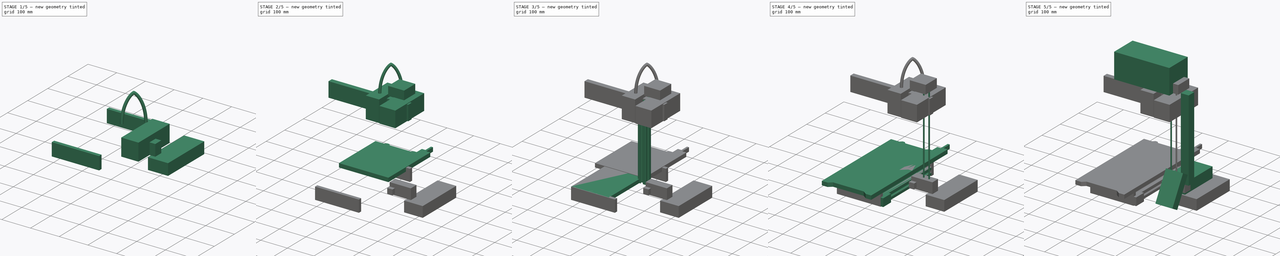
[diagram: build sequence overview — one tinted view per stage of 5, left to right]
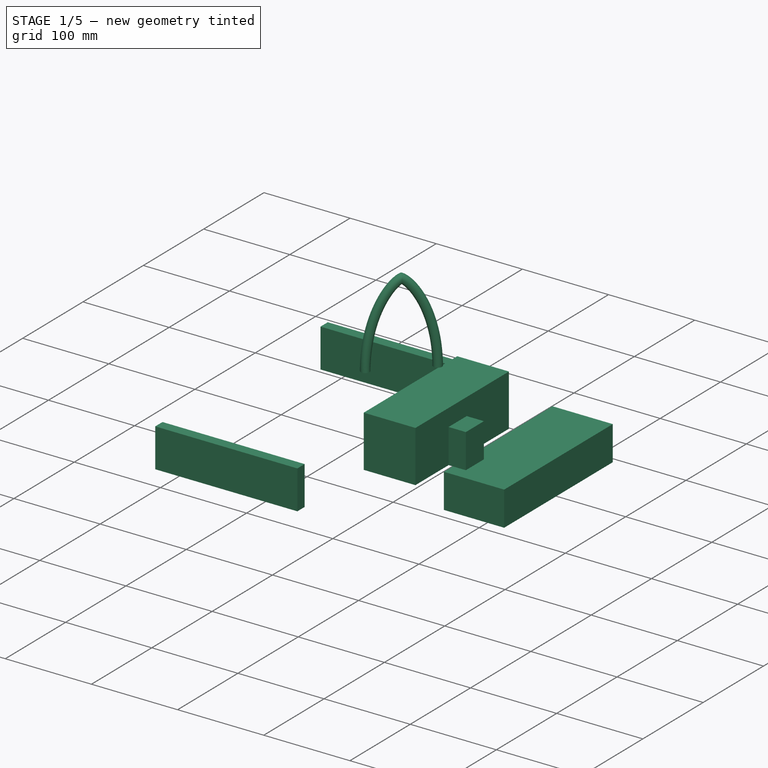
[diagram: stage 1 of 5 — iso view after this stage's code; geometry added in this stage tinted green]
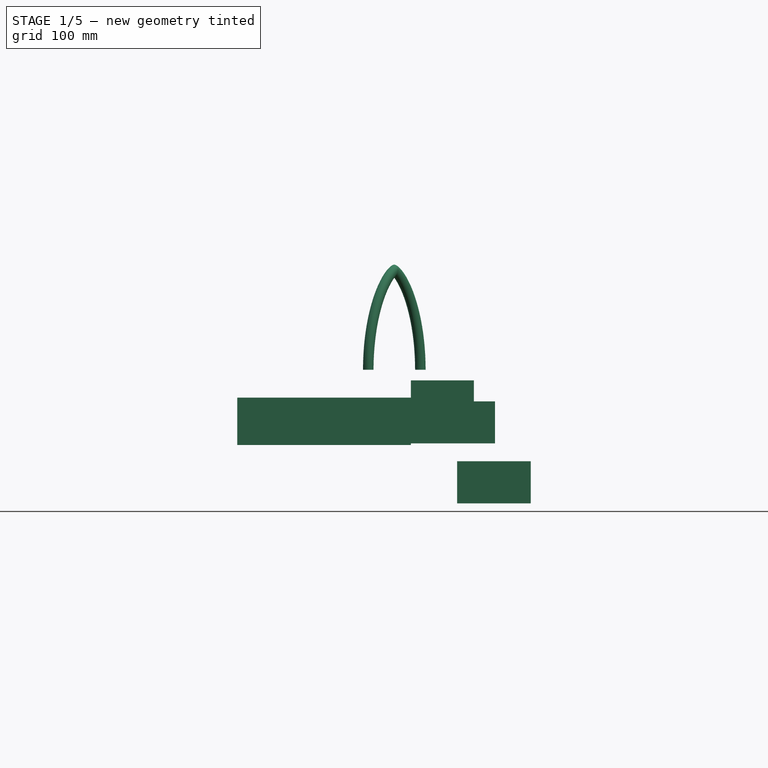
[diagram: stage 1 of 5 — front view after this stage's code; geometry added in this stage tinted green]
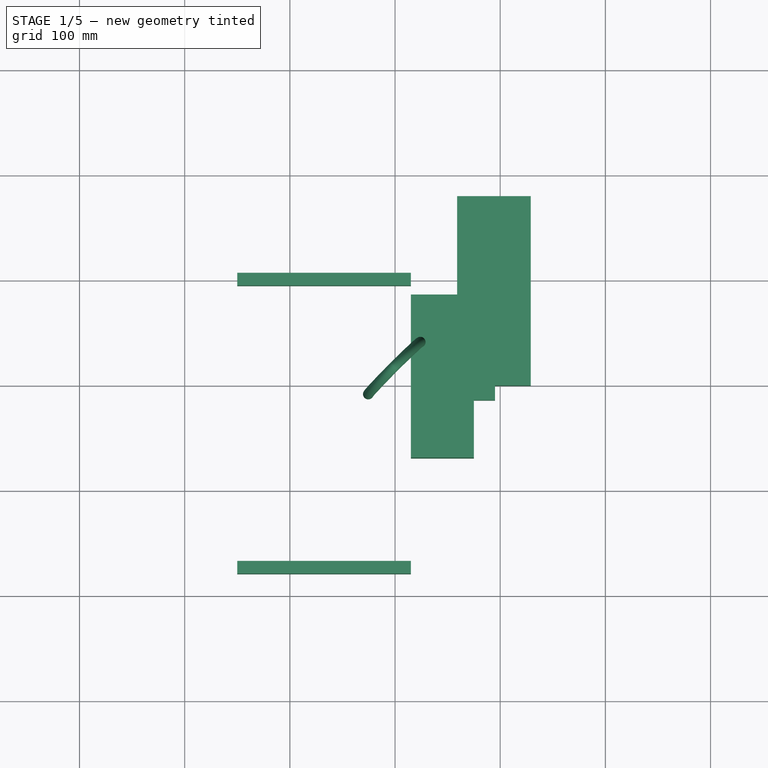
[diagram: stage 1 of 5 — top view after this stage's code; geometry added in this stage tinted green]
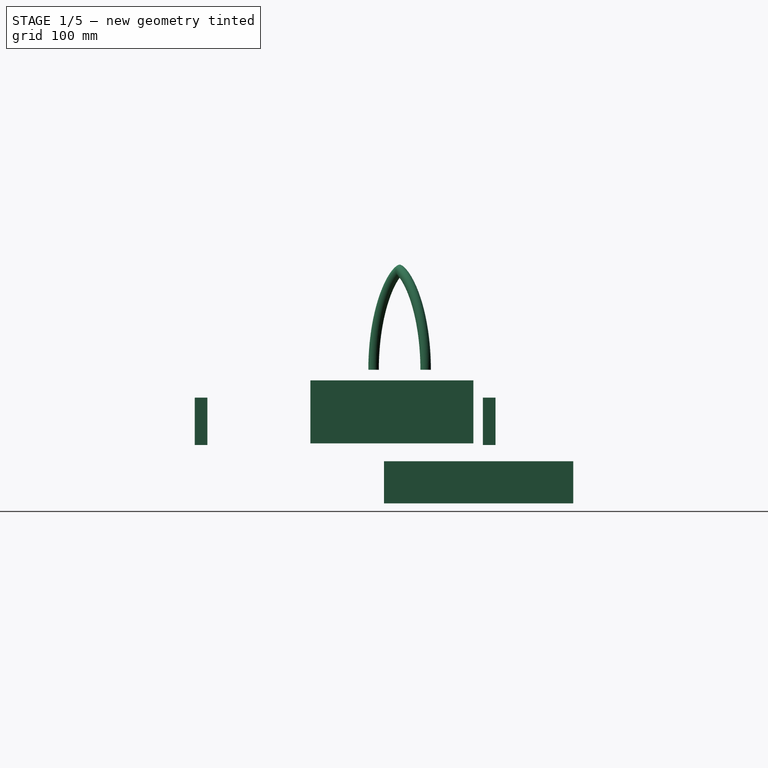
[diagram: stage 1 of 5 — right view after this stage's code; geometry added in this stage tinted green]
FCSTD DOCUMENT  (FreeCAD 0.18R)
Label: PrusaMiniOutline
License: All rights reserved
LicenseURL: http://en.wikipedia.org/wiki/All_rights_reserved
objects: Part::Box×15, Sketcher::SketchObject×7, Part::MultiFuse×4, PartDesign::Pad×3, PartDesign::Pocket×3, PartDesign::Body×3, Part::Cylinder×3, PartDesign::PolarPattern×2, Part::FeaturePython×1, Part::Ellipse×1, Part::Circle×1, Part::Sweep×1, Part::Compound×1, App::Part×1
note: 51 computed .brp shape members not serialized (recipe doc carries the construction recipe); baked Part::Feature solids carry a one-line shape summary decoded from their .brp

FEATURE [Part::Box] Box004  label="Extruder"
  AttacherType = Attacher::AttachEngine3D
  Height = 60
  Length = 60
  Placement = pos=(15,-70,-30) rot=(0,0,1;0rad)
  Width = 155
FEATURE [Part::Ellipse] Ellipse001
  Angle0 = 90
  Angle1 = 270
  AttacherType = Attacher::AttachEngine3D
  MajorRadius = 180
  MinorRadius = 120
  Placement = pos=(0,0,0) rot=(0,1,0;1.5708rad)
FEATURE [Part::Circle] Circle
  Angle0 = 0
  Angle1 = 360
  AttacherType = Attacher::AttachEngine3D
  Placement = pos=(0,35,0) rot=(0,0,1;0rad)
  Radius = 5
FEATURE [Part::Sweep] Sweep  label="Cable"
  Frenet = false
  Placement = pos=(-0.707107,14.8492,40) rot=(0,0,-1;0.785398rad)
  Sections = -> [Circle]
  Solid = true
  Spine = -> Ellipse001 [Edge1]
  Transition = 1
FEATURE [Part::Box] Box025  label="ZBeamFixture"
  AttacherType = Attacher::AttachEngine3D
  Height = 40
  Length = 80
  Placement = pos=(15,-15,-30) rot=(0,0,1;0rad)
  Width = 30
FEATURE [Part::Box] Box027  label="CoverBack"
  AttacherType = Attacher::AttachEngine3D
  Height = 45
  Length = 165
  Placement = pos=(-150,94,-31.5) rot=(0,0,1;0rad)
  Width = 12
FEATURE [Part::Box] Box028  label="PowerSupply"
  AttacherType = Attacher::AttachEngine3D
  Height = 40
  Length = 180
  Placement = pos=(129,-2.9e-14,-87) rot=(0,0,1;1.5708rad)
  Width = 70
FEATURE [Part::Box] Box033  label="MountBlock"
  AttacherType = Attacher::AttachEngine3D
  Height = 20
  Length = 20
  Placement = pos=(15,-28,-25) rot=(0,0,1;0rad)
  Width = 13
FEATURE [Part::Box] Box034  label="CoverFront"
  AttacherType = Attacher::AttachEngine3D
  Height = 45
  Length = 165
  Placement = pos=(-150,-180,-31.5) rot=(0,0,1;0rad)
  Width = 12
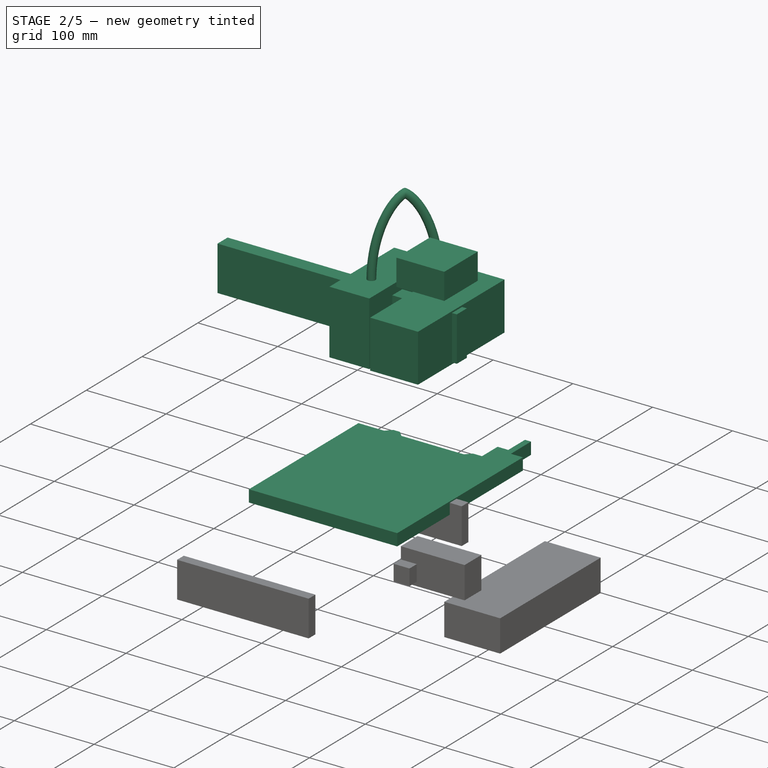
[diagram: stage 2 of 5 — iso view after this stage's code; geometry added in this stage tinted green]
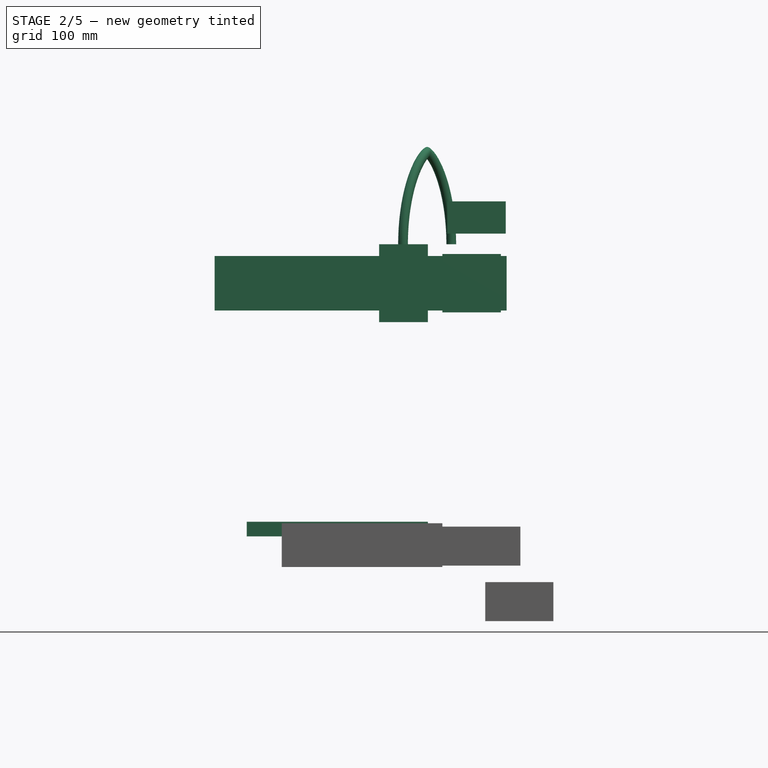
[diagram: stage 2 of 5 — front view after this stage's code; geometry added in this stage tinted green]
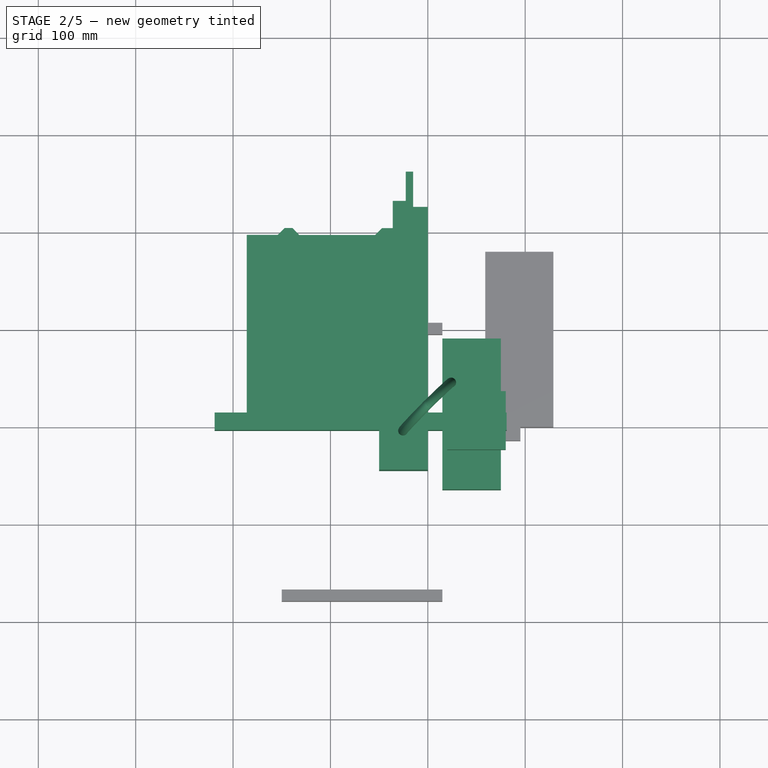
[diagram: stage 2 of 5 — top view after this stage's code; geometry added in this stage tinted green]
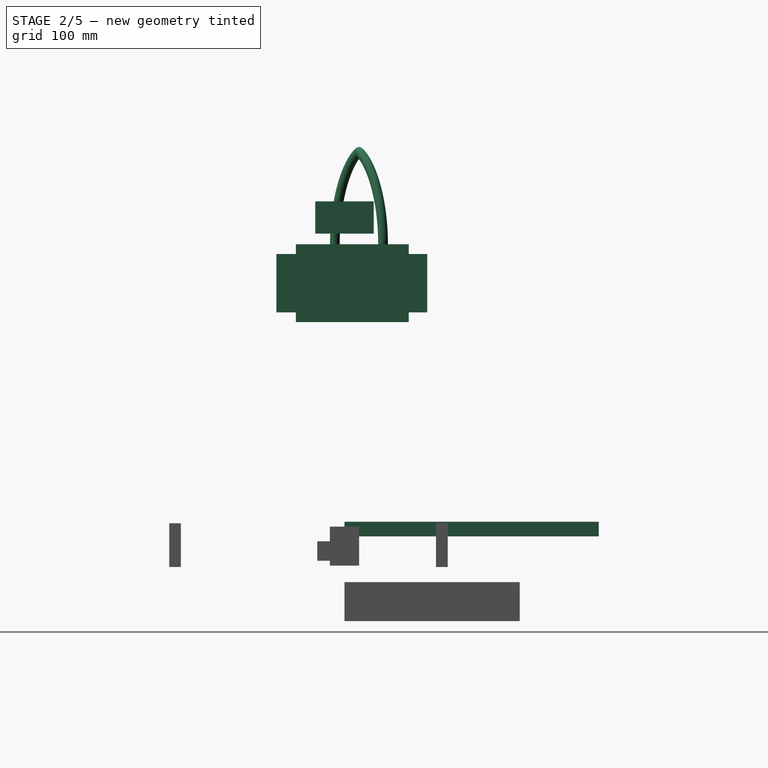
[diagram: stage 2 of 5 — right view after this stage's code; geometry added in this stage tinted green]
FEATURE [Part::Box] Box003  label="XBeam"
  AttacherType = Attacher::AttachEngine3D
  Height = 56
  Length = 300
  Placement = pos=(81,9,-28) rot=(0,0,1;3.14159rad)
  Width = 18
FEATURE [Part::Box] Box009  label="ZMotor"
  AttacherType = Attacher::AttachEngine3D
  Height = 33
  Length = 60
  Placement = pos=(80,30,311) rot=(0,0,1;3.14159rad)
  Width = 60
FEATURE [Sketcher::SketchObject] Sketch008
  MapMode = 5
  Support = -> [XY_Plane030]
  sketch-geometry (16):
    g0: LineSegment StartX=0 StartY=0 StartZ=0 EndX=-186 EndY=0 EndZ=0
    g1: LineSegment StartX=-186 StartY=0 StartZ=0 EndX=-186 EndY=186 EndZ=0
    g2: LineSegment StartX=-186 StartY=186 StartZ=0 EndX=-154 EndY=186 EndZ=0
    g3: LineSegment StartX=-154 StartY=186 StartZ=0 EndX=-147 EndY=193 EndZ=0
    g4: LineSegment StartX=-147 StartY=193 StartZ=0 EndX=-139 EndY=193 EndZ=0
    g5: LineSegment StartX=-139 StartY=193 StartZ=0 EndX=-132 EndY=186 EndZ=0
    g6: LineSegment StartX=-132 StartY=186 StartZ=0 EndX=-54 EndY=186 EndZ=0
    g7: LineSegment StartX=-47 StartY=193 StartZ=0 EndX=-36 EndY=193 EndZ=0
    g8: LineSegment StartX=-36 StartY=193 StartZ=0 EndX=-36 EndY=221 EndZ=0
    g9: LineSegment StartX=-36 StartY=221 StartZ=0 EndX=-22.6482 EndY=221 EndZ=0
    g10: LineSegment StartX=-22.6482 StartY=221 StartZ=0 EndX=-22.6482 EndY=258 EndZ=0
    g11: LineSegment StartX=-22.6482 StartY=258 StartZ=0 EndX=-15.0818 EndY=258 EndZ=0
    g12: LineSegment StartX=-15.0818 StartY=258 StartZ=0 EndX=-15.0818 EndY=225 EndZ=0
    g13: LineSegment StartX=-15.0818 StartY=225 StartZ=0 EndX=0 EndY=225 EndZ=0
    g14: LineSegment StartX=0 StartY=225 StartZ=0 EndX=0 EndY=0 EndZ=0
    g15: LineSegment StartX=-54 StartY=186 StartZ=0 EndX=-47 EndY=193 EndZ=0
  constraints (45):
    c: Coincident(g0,g1)
    c: Coincident(g1,g2)
    c: Coincident(g2,g3)
    c: Coincident(g3,g4)
    c: Coincident(g4,g5)
    c: Coincident(g5,g6)
    c: Coincident(g7,g8)
    c: Coincident(g9,g10)
    c: Coincident(g10,g11)
    c: Coincident(g11,g12)
    c: Coincident(g12,g13)
    c: Coincident(g14,g0)
    c: Coincident(g0,g-1)
    c: Coincident(g8,g9)
    c: Coincident(g13,g14)
    c: Horizontal(g0)
    c: Horizontal(g2)
    c: Horizontal(g4)
    c: Horizontal(g6)
    c: Horizontal(g7)
    c: Horizontal(g9)
    c: Horizontal(g13)
    c: Horizontal(g11)
    c: Vertical(g1)
    c: Vertical(g14)
    c: Vertical(g10)
    c: Vertical(g12)
    c: DistanceX(g0,g0) = 186
    c: DistanceY(g1,g1) = 186
    c: DistanceY(g3,g3) = 7
    c: DistanceX(g4,g4) = 8
    c: DistanceY(g6,g7) = 7
    c: DistanceY(g0,g5) = 186
    c: DistanceX(g2,g2) = 32
    c: DistanceX(g1,g3) = 39
    c: Equal(g3,g5)
    c: DistanceX(g1,g6) = 132
    c: Coincident(g7,g15)
    c: Coincident(g6,g15)
    c: Equal(g3,g15)
    c: DistanceX(g7,g7) = 11
    c: Vertical(g8)
    c: DistanceY(g8,g8) = 28
    c: DistanceY(g7,g10) = 65
    c: DistanceY(g0,g13) = 225
FEATURE [PartDesign::Pad] Pad022
  Length = 15
  Length2 = 100
  Profile = -> Sketch008
  Type = 0
FEATURE [PartDesign::Body] Body025  label="HeatBed"
  Group = -> [Sketch008,Pad022]
  Origin = -> Origin030
  Placement = pos=(17,-47,13) rot=(0,0,1;0rad)
  Tip = -> Pad022
FEATURE [Sketcher::SketchObject] Sketch009
  MapMode = 5
  Support = -> [XY_Plane031]
  sketch-geometry (20):
    g0: LineSegment StartX=-186 StartY=0.233641 StartZ=0 EndX=-186 EndY=196.234 EndZ=0
    g1: LineSegment StartX=-186 StartY=196.234 StartZ=0 EndX=-154 EndY=196.234 EndZ=0
    g2: LineSegment StartX=-154 StartY=196.234 StartZ=0 EndX=-147 EndY=203.234 EndZ=0
    g3: LineSegment StartX=-147 StartY=203.234 StartZ=0 EndX=-139 EndY=203.234 EndZ=0
    g4: LineSegment StartX=-139 StartY=203.234 StartZ=0 EndX=-132.106 EndY=196.129 EndZ=0
    g5: LineSegment StartX=-132.106 StartY=196.129 StartZ=0 EndX=-54 EndY=196.129 EndZ=0
    g6: LineSegment StartX=-47 StartY=203.129 StartZ=0 EndX=-36 EndY=203.129 EndZ=0
    g7: LineSegment StartX=-36 StartY=203.129 StartZ=0 EndX=-36 EndY=231.129 EndZ=0
    g8: LineSegment StartX=-36 StartY=231.129 StartZ=0 EndX=-22.6482 EndY=231.129 EndZ=0
    g9: LineSegment StartX=-22.6482 StartY=231.129 StartZ=0 EndX=-22.6482 EndY=261.129 EndZ=0
    g10: LineSegment StartX=-22.6482 StartY=261.129 StartZ=0 EndX=-15.0818 EndY=261.129 EndZ=0
    g11: LineSegment StartX=-15.0818 StartY=261.129 StartZ=0 EndX=-15.0818 EndY=221.212 EndZ=0
    g12: LineSegment StartX=-15.0818 StartY=221.212 StartZ=0 EndX=1.8e-15 EndY=221.212 EndZ=0
    g13: LineSegment StartX=1.2e-15 StartY=221.212 StartZ=0 EndX=1.2e-15 EndY=0.233641 EndZ=0
    g14: LineSegment StartX=-54 StartY=196.129 StartZ=0 EndX=-47 EndY=203.129 EndZ=0
    g15: LineSegment StartX=-186 StartY=0.233641 StartZ=0 EndX=-164.32 EndY=0.233641 EndZ=0
    g16: LineSegment StartX=-164.32 StartY=0.233641 StartZ=0 EndX=-151.579 EndY=11.2336 EndZ=0
    g17: LineSegment StartX=-151.579 StartY=11.2336 StartZ=0 EndX=-35.6441 EndY=11.2336 EndZ=0
    g18: LineSegment StartX=-35.6441 StartY=11.2336 StartZ=0 EndX=-20.5379 EndY=0.233641 EndZ=0
    g19: LineSegment StartX=-20.5379 StartY=0.233641 StartZ=0 EndX=0 EndY=0.233641 EndZ=0
  constraints (50):
    c: Coincident(g0,g1)
    c: Coincident(g1,g2)
    c: Coincident(g2,g3)
    c: Coincident(g3,g4)
    c: Coincident(g4,g5)
    c: Coincident(g6,g7)
    c: Coincident(g8,g9)
    c: Coincident(g9,g10)
    c: Coincident(g10,g11)
    c: Coincident(g11,g12)
    c: Coincident(g7,g8)
    c: Coincident(g12,g13)
    c: Horizontal(g1)
    c: Horizontal(g3)
    c: Horizontal(g5)
    c: Horizontal(g6)
    c: Horizontal(g8)
    c: Horizontal(g12)
    c: Horizontal(g10)
    c: Vertical(g0)
    c: Vertical(g13)
    c: Vertical(g9)
    c: Vertical(g11)
    c: DistanceX(g0,g13) = 186
    c: DistanceY(g0,g0) = 196
    c: DistanceY(g2,g2) = 7
    c: DistanceX(g3,g3) = 8
    c: DistanceY(g5,g6) = 7
    c: DistanceX(g1,g1) = 32
    c: DistanceX(g0,g2) = 39
    c: Equal(g2,g4)
    c: DistanceX(g0,g5) = 132
    c: Coincident(g6,g14)
    c: Coincident(g5,g14)
    c: Equal(g2,g14)
    c: DistanceX(g6,g6) = 11
    c: Vertical(g7)
    c: DistanceY(g7,g7) = 28
    c: DistanceY(g9,g9) = 30
    c: Coincident(g15,g16)
    c: Coincident(g16,g17)
    c: Coincident(g17,g18)
    c: Coincident(g18,g19)
    c: Coincident(g13,g19)
    c: Coincident(g0,g15)
    c: Horizontal(g15)
    c: Horizontal(g17)
    c: Horizontal(g19)
    c: DistanceY(g16,g2) = 192
    c: Horizontal(g15,g18)
FEATURE [PartDesign::Pad] Pad023
  Length = 15
  Length2 = 100
  Profile = -> Sketch009
  Type = 0
FEATURE [PartDesign::Body] Body026  label="HeatBedFront"
  Group = -> [Sketch009,Pad023]
  Origin = -> Origin031
  Placement = pos=(17,-234,13) rot=(0,0,1;0rad)
  Tip = -> Pad023
FEATURE [Part::Box] Box010  label="Hotend"
  AttacherType = Attacher::AttachEngine3D
  Height = 80
  Length = 50
  Placement = pos=(-50,-50,-40) rot=(0,0,1;0rad)
  Width = 116
FEATURE [Part::MultiFuse] Fusion003  label="PrusaMini-XBeam"
  Placement = pos=(0,0,260) rot=(0,0,1;0rad)
  Shapes = -> [Box010,Box003,Box004,Sweep]
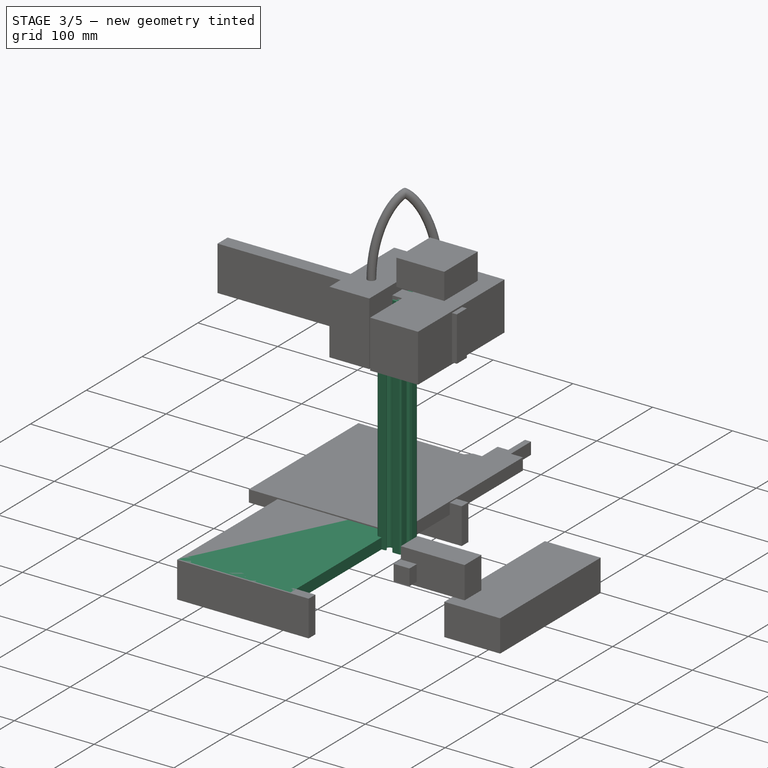
[diagram: stage 3 of 5 — iso view after this stage's code; geometry added in this stage tinted green]
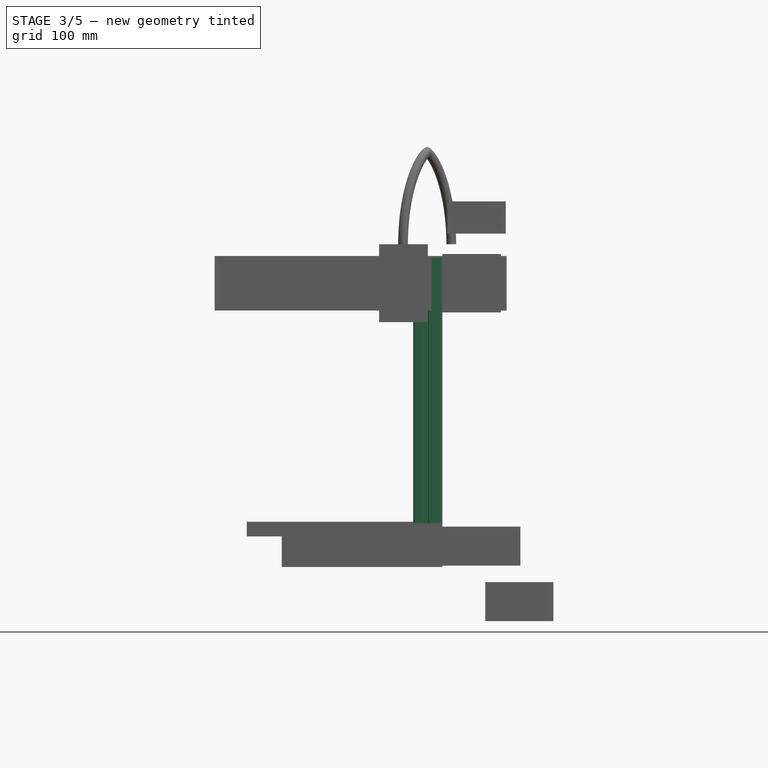
[diagram: stage 3 of 5 — front view after this stage's code; geometry added in this stage tinted green]
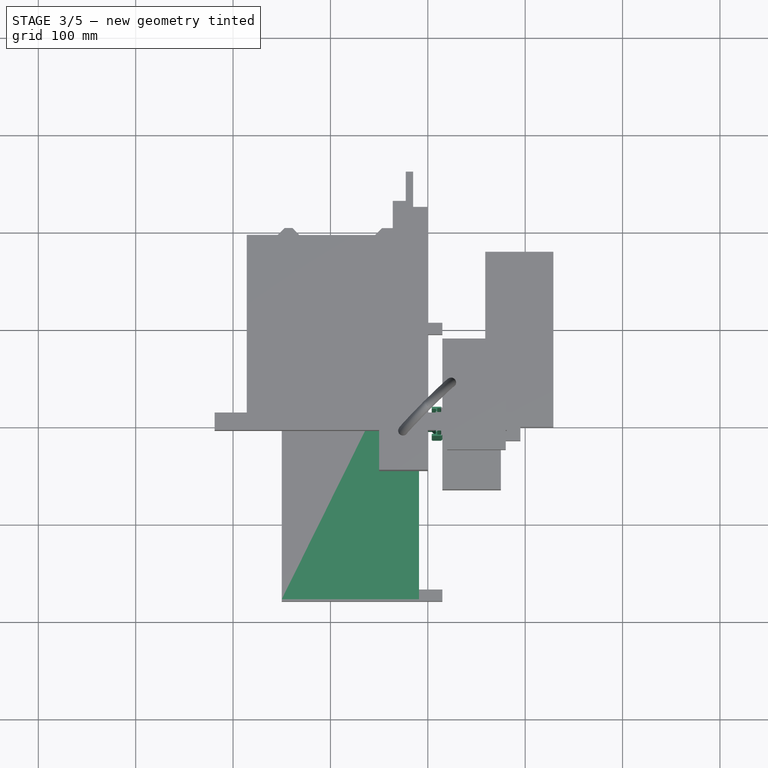
[diagram: stage 3 of 5 — top view after this stage's code; geometry added in this stage tinted green]
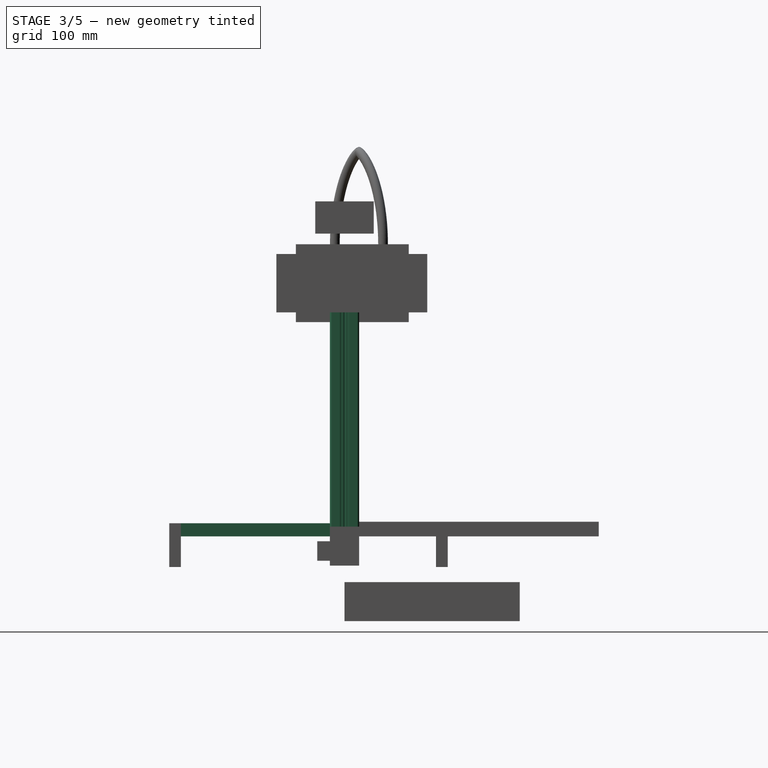
[diagram: stage 3 of 5 — right view after this stage's code; geometry added in this stage tinted green]
FEATURE [Sketcher::SketchObject] Sketch  label="perfil"
  MapMode = 5
  Placement = pos=(0,0,0) rot=(0,1,0;1.5708rad)
  sketch-geometry (53):
    g0: LineSegment StartX=-6 StartY=-4.58579 StartZ=0 EndX=-6 EndY=4.58579 EndZ=0
    g1: LineSegment StartX=4.58579 StartY=6 StartZ=0 EndX=-4.58579 EndY=6 EndZ=0
    g2: LineSegment StartX=-6 StartY=4.58579 StartZ=0 EndX=-9.66421 EndY=8.25 EndZ=0
    g3: LineSegment StartX=-4.58579 StartY=6 StartZ=0 EndX=-8.25 EndY=9.66421 EndZ=0
    g4: LineSegment StartX=-9.66421 StartY=8.25 StartZ=0 EndX=-13 EndY=8.25 EndZ=0
    g5: LineSegment StartX=-13 StartY=8.25 StartZ=0 EndX=-13 EndY=4 EndZ=0
    g6: LineSegment StartX=-8.25 StartY=9.66421 StartZ=0 EndX=-8.25 EndY=13 EndZ=0
    g7: LineSegment StartX=-8.25 StartY=13 StartZ=0 EndX=-4 EndY=13 EndZ=0
    g8: LineSegment StartX=-13 StartY=4 StartZ=0 EndX=-15 EndY=4 EndZ=0
    g9: LineSegment StartX=-4 StartY=13 StartZ=0 EndX=-4 EndY=15 EndZ=0
    g10: LineSegment StartX=-4 StartY=15 StartZ=0 EndX=-14 EndY=15 EndZ=0
    g11: LineSegment StartX=-15 StartY=4 StartZ=0 EndX=-15 EndY=14 EndZ=0
    g12: ArcOfCircle CenterX=-14 CenterY=14 CenterZ=0 NormalX=0 NormalY=0 NormalZ=1 AngleXU=0 Radius=1 StartAngle=1.5708 EndAngle=3.14159
    g13: Circle CenterX=-11.6 CenterY=11.6 CenterZ=0 NormalX=0 NormalY=0 NormalZ=1 AngleXU=0 Radius=2.1
    g14: Circle CenterX=0 CenterY=0 CenterZ=0 NormalX=0 NormalY=0 NormalZ=1 AngleXU=0 Radius=3.4
    g15: LineSegment StartX=6 StartY=4.58579 StartZ=0 EndX=6 EndY=-4.58579 EndZ=0
    g16: LineSegment StartX=4.58579 StartY=6 StartZ=0 EndX=8.25 EndY=9.66421 EndZ=0
    g17: LineSegment StartX=8.25 StartY=9.66421 StartZ=0 EndX=8.25 EndY=13 EndZ=0
    g18: LineSegment StartX=8.25 StartY=13 StartZ=0 EndX=4 EndY=13 EndZ=0
    g19: LineSegment StartX=4 StartY=13 StartZ=0 EndX=4 EndY=15 EndZ=0
    g20: LineSegment StartX=6 StartY=4.58579 StartZ=0 EndX=9.66421 EndY=8.25 EndZ=0
    g21: LineSegment StartX=9.66421 StartY=8.25 StartZ=0 EndX=13 EndY=8.25 EndZ=0
    g22: LineSegment StartX=13 StartY=8.25 StartZ=0 EndX=13 EndY=4 EndZ=0
    g23: LineSegment StartX=13 StartY=4 StartZ=0 EndX=15 EndY=4 EndZ=0
    g24: LineSegment StartX=15 StartY=4 StartZ=0 EndX=15 EndY=14 EndZ=0
    g25: Circle CenterX=11.6 CenterY=11.6 CenterZ=0 NormalX=0 NormalY=0 NormalZ=1 AngleXU=0 Radius=2.1
    g26: LineSegment StartX=4 StartY=15 StartZ=0 EndX=14 EndY=15 EndZ=0
    g27: ArcOfCircle CenterX=14 CenterY=14 CenterZ=0 NormalX=0 NormalY=0 NormalZ=1 AngleXU=0 Radius=1 StartAngle=6.28319 EndAngle=7.85398
    g28: LineSegment StartX=6 StartY=-4.58579 StartZ=0 EndX=9.66421 EndY=-8.25 EndZ=0
    g29: LineSegment StartX=9.66421 StartY=-8.25 StartZ=0 EndX=13 EndY=-8.25 EndZ=0
    g30: LineSegment StartX=13 StartY=-8.25 StartZ=0 EndX=13 EndY=-4 EndZ=0
    g31: LineSegment StartX=13 StartY=-4 StartZ=0 EndX=15 EndY=-4 EndZ=0
    g32: LineSegment StartX=15 StartY=-4 StartZ=0 EndX=15 EndY=-14 EndZ=0
    g33: LineSegment StartX=14 StartY=-15 StartZ=0 EndX=4 EndY=-15 EndZ=0
    g34: LineSegment StartX=4 StartY=-15 StartZ=0 EndX=4 EndY=-13 EndZ=0
    g35: LineSegment StartX=4 StartY=-13 StartZ=0 EndX=8.25 EndY=-13 EndZ=0
    g36: LineSegment StartX=8.25 StartY=-13 StartZ=0 EndX=8.25 EndY=-9.66421 EndZ=0
    g37: LineSegment StartX=8.25 StartY=-9.66421 StartZ=0 EndX=4.58579 EndY=-6 EndZ=0
    g38: LineSegment StartX=4.58579 StartY=-6 StartZ=0 EndX=-4.58579 EndY=-6 EndZ=0
    g39: LineSegment StartX=-4.58579 StartY=-6 StartZ=0 EndX=-8.25 EndY=-9.66421 EndZ=0
    g40: LineSegment StartX=-8.25 StartY=-9.66421 StartZ=0 EndX=-8.25 EndY=-13 EndZ=0
    g41: LineSegment StartX=-8.25 StartY=-13 StartZ=0 EndX=-4 EndY=-13 EndZ=0
    g42: LineSegment StartX=-4 StartY=-13 StartZ=0 EndX=-4 EndY=-15 EndZ=0
    g43: LineSegment StartX=-4 StartY=-15 StartZ=0 EndX=-14 EndY=-15 EndZ=0
    g44: ArcOfCircle CenterX=14 CenterY=-14 CenterZ=0 NormalX=0 NormalY=0 NormalZ=1 AngleXU=0 Radius=1 StartAngle=4.71239 EndAngle=6.28319
    g45: LineSegment StartX=-6 StartY=-4.58579 StartZ=0 EndX=-9.66421 EndY=-8.25 EndZ=0
    g46: LineSegment StartX=-9.66421 StartY=-8.25 StartZ=0 EndX=-13 EndY=-8.25 EndZ=0
    g47: LineSegment StartX=-13 StartY=-8.25 StartZ=0 EndX=-13 EndY=-4 EndZ=0
    g48: LineSegment StartX=-13 StartY=-4 StartZ=0 EndX=-15 EndY=-4 EndZ=0
    g49: LineSegment StartX=-15 StartY=-4 StartZ=0 EndX=-15 EndY=-14 EndZ=0
    g50: ArcOfCircle CenterX=-14 CenterY=-14 CenterZ=0 NormalX=0 NormalY=0 NormalZ=1 AngleXU=0 Radius=0.999995 StartAngle=3.14159 EndAngle=4.71239
    g51: Circle CenterX=-11.6 CenterY=-11.6 CenterZ=0 NormalX=0 NormalY=0 NormalZ=1 AngleXU=0 Radius=2.1
    g52: Circle CenterX=11.6 CenterY=-11.6 CenterZ=0 NormalX=0 NormalY=0 NormalZ=1 AngleXU=0 Radius=2.1
  constraints (125):
    c: DistanceX(g-1,g0) = -6
    c: Vertical(g0)
    c: Horizontal(g1)
    c: Equal(g0,g1)
    c: Coincident(g0,g2)
    c: Angle(g2,g0) = 2.35619
    c: Coincident(g3,g1)
    c: Parallel(g2,g3)
    c: Equal(g3,g2)
    c: Coincident(g4,g2)
    c: Horizontal(g4)
    c: Coincident(g4,g5)
    c: Vertical(g5)
    c: Coincident(g6,g3)
    c: Vertical(g6)
    c: Equal(g4,g6)
    c: Coincident(g7,g6)
    c: Horizontal(g7)
    c: Equal(g7,g5)
    c: Coincident(g8,g5)
    c: Horizontal(g8)
    c: Coincident(g9,g7)
    c: Vertical(g9)
    c: DistanceX(g-1,g7) = -4
    c: DistanceY(g9) = 2
    c: Coincident(g10,g9)
    c: Horizontal(g10)
    c: Coincident(g11,g8)
    c: Vertical(g11)
    c: Equal(g10,g11)
    c: DistanceY(g-1,g10) = 15
    c: Coincident(g12,g10)
    c: Coincident(g12,g11)
    c: Radius(g12) = 1
    c: Tangent(g12,g11)
    c: Equal(g8,g9)
    c: Distance(g1,g0) = 2
    c: DistanceX(g-1,g3) = -8.25
    c: Radius(g13) = 2.1
    c: DistanceY(g-1,g13) = 11.6
    c: DistanceX(g-1,g13) = -11.6
    c: Coincident(g14,g-1)
    c: Radius(g14) = 3.4
    c: DistanceY(g-1,g1) = 6
    c: DistanceY(g-1,g5) = 4
    c: Symmetric(g15,g0,g-2)
    c: Symmetric(g0,g15,g-2)
    c: Coincident(g16,g1)
    c: Symmetric(g1,g1,g-2)
    c: Symmetric(g16,g3,g-2)
    c: Coincident(g17,g16)
    c: Symmetric(g17,g6,g-2)
    c: Coincident(g18,g17)
    c: Symmetric(g18,g7,g-2)
    c: Coincident(g19,g18)
    c: Symmetric(g19,g9,g-2)
    c: Coincident(g20,g21)
    c: Coincident(g21,g22)
    c: Coincident(g22,g23)
    c: Coincident(g23,g24)
    c: Coincident(g20,g15)
    c: Symmetric(g20,g2,g-2)
    c: Symmetric(g21,g4,g-2)
    c: Symmetric(g22,g5,g-2)
    c: Symmetric(g23,g8,g-2)
    c: Symmetric(g24,g11,g-2)
    c: Symmetric(g25,g13,g-2)
    c: Equal(g25,g13)
    c: Coincident(g26,g19)
    c: Symmetric(g26,g10,g-2)
    c: Tangent(g27,g26) = 1.5708
    c: Radius(g27) = 1
    c: Coincident(g27,g24)
    c: Coincident(g28,g29)
    c: Coincident(g29,g30)
    c: Coincident(g30,g31)
    c: Coincident(g31,g32)
    c: Coincident(g28,g15)
    c: Symmetric(g28,g20,g-1)
    c: Symmetric(g29,g21,g-1)
    c: Symmetric(g30,g22,g-1)
    c: Symmetric(g31,g23,g-1)
    c: Symmetric(g32,g24,g-1)
    c: Coincident(g33,g34)
    c: Coincident(g34,g35)
    c: Coincident(g35,g36)
    c: Coincident(g36,g37)
    c: Coincident(g37,g38)
    c: Coincident(g38,g39)
    c: Coincident(g39,g40)
    c: Coincident(g40,g41)
    c: Coincident(g41,g42)
    c: Coincident(g42,g43)
    c: Symmetric(g42,g9,g-1)
    c: Symmetric(g41,g7,g-1)
    c: Symmetric(g40,g6,g-1)
    c: Symmetric(g39,g3,g-1)
    c: Symmetric(g38,g1,g-1)
    c: Symmetric(g37,g1,g-1)
    c: Symmetric(g36,g16,g-1)
    c: Symmetric(g35,g17,g-1)
    c: Symmetric(g34,g18,g-1)
    c: Symmetric(g33,g19,g-1)
    c: Symmetric(g33,g26,g-1)
    c: Radius(g44) = 1
    c: Coincident(g44,g33)
    c: Coincident(g44,g32)
    c: Symmetric(g43,g10,g-1)
    c: Coincident(g45,g46)
    c: Coincident(g46,g47)
    c: Coincident(g47,g48)
    c: Coincident(g48,g49)
    c: Coincident(g0,g45)
    c: Symmetric(g45,g2,g-1)
    c: Symmetric(g46,g4,g-1)
    c: Symmetric(g47,g5,g-1)
    c: Symmetric(g48,g8,g-1)
    c: Symmetric(g49,g11,g-1)
    c: Coincident(g50,g49)
    c: Coincident(g50,g43)
    c: Tangent(g50,g49)
    c: Symmetric(g51,g13,g-1)
    c: Equal(g51,g13)
    c: Symmetric(g52,g51,g-2)
    c: Equal(g52,g51)
FEATURE [Sketcher::SketchObject] Sketch001
  MapMode = 5
  Support = -> [XY_Plane]
  sketch-geometry (8):
    g0: LineSegment StartX=-13 StartY=15 StartZ=0 EndX=13 EndY=15 EndZ=0
    g1: LineSegment StartX=15 StartY=13 StartZ=0 EndX=15 EndY=-13 EndZ=0
    g2: LineSegment StartX=13 StartY=-15 StartZ=0 EndX=-13 EndY=-15 EndZ=0
    g3: LineSegment StartX=-15 StartY=-13 StartZ=0 EndX=-15 EndY=13 EndZ=0
    g4: ArcOfCircle CenterX=-13 CenterY=13 CenterZ=0 NormalX=0 NormalY=0 NormalZ=1 AngleXU=0 Radius=2 StartAngle=1.5708 EndAngle=3.14159
    g5: ArcOfCircle CenterX=13 CenterY=13 CenterZ=0 NormalX=0 NormalY=0 NormalZ=1 AngleXU=0 Radius=2 StartAngle=-1.91e-13 EndAngle=1.5708
    g6: ArcOfCircle CenterX=13 CenterY=-13 CenterZ=0 NormalX=0 NormalY=0 NormalZ=1 AngleXU=0 Radius=2 StartAngle=4.71239 EndAngle=6.28319
    g7: ArcOfCircle CenterX=-13 CenterY=-13 CenterZ=0 NormalX=0 NormalY=0 NormalZ=1 AngleXU=0 Radius=2 StartAngle=3.14159 EndAngle=4.71239
  constraints (18):
    c: Horizontal(g0)
    c: Vertical(g3)
    c: Tangent(g3,g4) = 1.5708
    c: Tangent(g0,g4) = 1.5708
    c: Tangent(g0,g5) = 1.5708
    c: Tangent(g1,g5) = 1.5708
    c: Tangent(g1,g6) = 1.5708
    c: Tangent(g2,g6) = 1.5708
    c: Tangent(g3,g7) = 1.5708
    c: Tangent(g2,g7) = 1.5708
    c: Radius(g4) = 2
    c: Equal(g4,g5)
    c: Equal(g5,g7)
    c: Equal(g7,g6)
    c: Symmetric(g2,g2,g-2)
    c: Symmetric(g1,g1,g-1)
    c: DistanceX(g3,g1) = 30
    c: DistanceY(g2,g0) = 30
FEATURE [PartDesign::Pad] Pad001  label="Solid_Material"
  Length = 286
  Length2 = 286
  Profile = -> Sketch001
  Type = 0
FEATURE [Sketcher::SketchObject] Sketch002
  ExternalGeometry = -> [Pad001]
  MapMode = 5
  Placement = pos=(0,0,0) rot=(1,0,0;3.14159rad)
  Support = -> [Pad001]
  sketch-geometry (40):
    g0: LineSegment StartX=-14.5 StartY=-4.5 StartZ=0 EndX=-14.5 EndY=-4.2 EndZ=0
    g1: LineSegment StartX=-14.3 StartY=-4 StartZ=0 EndX=-13.3 EndY=-4 EndZ=0
    g2: LineSegment StartX=-12.8 StartY=-4.5 StartZ=0 EndX=-12.8 EndY=-7.75 EndZ=0
    g3: LineSegment StartX=-12.3 StartY=-8.25 StartZ=0 EndX=-10.2534 EndY=-8.25 EndZ=0
    g4: LineSegment StartX=-9.9 StartY=-8.10371 StartZ=0 EndX=-6.14661 EndY=-4.35371 EndZ=0
    g5: LineSegment StartX=-6 StartY=-4 StartZ=0 EndX=-6 EndY=-0.95 EndZ=0
    g6: LineSegment StartX=-5.97386 StartY=-0.851148 StartZ=0 EndX=-5.54614 EndY=-0.0988516 EndZ=0
    g7: LineSegment StartX=-5.54614 StartY=0.0988516 StartZ=0 EndX=-5.97386 EndY=0.851148 EndZ=0
    g8: LineSegment StartX=-6 StartY=0.95 StartZ=0 EndX=-6 EndY=4 EndZ=0
    g9: LineSegment StartX=-6.14661 StartY=4.35371 StartZ=0 EndX=-9.9 EndY=8.10371 EndZ=0
    g10: LineSegment StartX=-10.2534 StartY=8.25 StartZ=0 EndX=-12.3 EndY=8.25 EndZ=0
    g11: LineSegment StartX=-12.8 StartY=7.75 StartZ=0 EndX=-12.8 EndY=4.5 EndZ=0
    g12: LineSegment StartX=-13.3 StartY=4 StartZ=0 EndX=-14.3 EndY=4 EndZ=0
    g13: LineSegment StartX=-14.5 StartY=4.2 StartZ=0 EndX=-14.5 EndY=4.5 EndZ=0
    g14: ArcOfCircle CenterX=-14.3 CenterY=4.2 CenterZ=0 NormalX=0 NormalY=0 NormalZ=1 AngleXU=0 Radius=0.2 StartAngle=3.14159 EndAngle=4.71239
    g15: ArcOfCircle CenterX=-13.3 CenterY=4.5 CenterZ=0 NormalX=0 NormalY=0 NormalZ=1 AngleXU=0 Radius=0.5 StartAngle=4.71239 EndAngle=6.28319
    g16: ArcOfCircle CenterX=-13.3 CenterY=-4.5 CenterZ=0 NormalX=0 NormalY=0 NormalZ=1 AngleXU=0 Radius=0.5 StartAngle=1e-16 EndAngle=1.5708
    g17: ArcOfCircle CenterX=-14.3 CenterY=-4.2 CenterZ=0 NormalX=0 NormalY=0 NormalZ=1 AngleXU=0 Radius=0.2 StartAngle=1.5708 EndAngle=3.14159
    g18: ArcOfCircle CenterX=-12.3 CenterY=-7.75 CenterZ=0 NormalX=0 NormalY=0 NormalZ=1 AngleXU=0 Radius=0.5 StartAngle=3.14159 EndAngle=4.71239
    g19: ArcOfCircle CenterX=-10.2534 CenterY=-7.75 CenterZ=0 NormalX=0 NormalY=0 NormalZ=1 AngleXU=0 Radius=0.5 StartAngle=4.71239 EndAngle=5.49733
    g20: ArcOfCircle CenterX=-12.3 CenterY=7.75 CenterZ=0 NormalX=0 NormalY=0 NormalZ=1 AngleXU=0 Radius=0.5 StartAngle=1.5708 EndAngle=3.14159
    g21: ArcOfCircle CenterX=-10.2534 CenterY=7.75 CenterZ=0 NormalX=0 NormalY=0 NormalZ=1 AngleXU=0 Radius=0.5 StartAngle=0.78585 EndAngle=1.5708
    g22: ArcOfCircle CenterX=-6.5 CenterY=4 CenterZ=0 NormalX=0 NormalY=0 NormalZ=1 AngleXU=0 Radius=0.5 StartAngle=2e-16 EndAngle=0.78585
    g23: ArcOfCircle CenterX=-5.8 CenterY=0.95 CenterZ=0 NormalX=0 NormalY=0 NormalZ=1 AngleXU=0 Radius=0.2 StartAngle=3.14159 EndAngle=3.65857
    g24: ArcOfCircle CenterX=-5.72 CenterY=0 CenterZ=0 NormalX=0 NormalY=0 NormalZ=1 AngleXU=0 Radius=0.2 StartAngle=5.7662 EndAngle=6.80017
    g25: ArcOfCircle CenterX=-5.8 CenterY=-0.95 CenterZ=0 NormalX=0 NormalY=0 NormalZ=1 AngleXU=0 Radius=0.2 StartAngle=2.62461 EndAngle=3.14159
    g26: ArcOfCircle CenterX=-6.5 CenterY=-4 CenterZ=0 NormalX=0 NormalY=0 NormalZ=1 AngleXU=0 Radius=0.5 StartAngle=5.49733 EndAngle=6.28319
    g27: LineSegment StartX=-14.5 StartY=-4.5 StartZ=0 EndX=-14.8 EndY=-4.5 EndZ=0
    g28: LineSegment StartX=-14.5 StartY=4.5 StartZ=0 EndX=-14.8 EndY=4.5 EndZ=0
    g29: ArcOfCircle CenterX=-14.8 CenterY=4.7 CenterZ=0 NormalX=0 NormalY=0 NormalZ=1 AngleXU=0 Radius=0.2 StartAngle=3.14162 EndAngle=4.71239
    g30: ArcOfCircle CenterX=-14.8 CenterY=-4.7 CenterZ=0 NormalX=0 NormalY=0 NormalZ=1 AngleXU=0 Radius=0.2 StartAngle=1.5708 EndAngle=3.14156
    g31: LineSegment StartX=-15 StartY=4.69999 StartZ=0 EndX=-15 EndY=-4.69999 EndZ=0
    g32: LineSegment StartX=-12.7 StartY=13.7 StartZ=0 EndX=-10.5 EndY=13.7 EndZ=0
    g33: LineSegment StartX=-9.5 StartY=12.7 StartZ=0 EndX=-9.5 EndY=10.5 EndZ=0
    g34: LineSegment StartX=-10.5 StartY=9.5 StartZ=0 EndX=-12.7 EndY=9.5 EndZ=0
    g35: LineSegment StartX=-13.7 StartY=10.5 StartZ=0 EndX=-13.7 EndY=12.7 EndZ=0
    g36: ArcOfCircle CenterX=-12.7 CenterY=12.7 CenterZ=0 NormalX=0 NormalY=0 NormalZ=1 AngleXU=0 Radius=1 StartAngle=1.5708 EndAngle=3.14159
    g37: ArcOfCircle CenterX=-10.5 CenterY=12.7 CenterZ=0 NormalX=0 NormalY=0 NormalZ=1 AngleXU=0 Radius=1 StartAngle=-9e-16 EndAngle=1.5708
    g38: ArcOfCircle CenterX=-10.5 CenterY=10.5 CenterZ=0 NormalX=0 NormalY=0 NormalZ=1 AngleXU=0 Radius=1 StartAngle=4.71239 EndAngle=6.28319
    g39: ArcOfCircle CenterX=-12.7 CenterY=10.5 CenterZ=0 NormalX=0 NormalY=0 NormalZ=1 AngleXU=0 Radius=1 StartAngle=3.14159 EndAngle=4.71239
  constraints (99):
    c: Horizontal(g1)
    c: Vertical(g2)
    c: Horizontal(g3)
    c: Vertical(g5)
    c: Vertical(g8)
    c: Vertical(g11)
    c: Horizontal(g12)
    c: Horizontal(g10)
    c: Vertical(g13)
    c: Vertical(g0)
    c: Tangent(g13,g14) = 1.5708
    c: Tangent(g12,g14) = 1.5708
    c: Tangent(g12,g15) = 1.5708
    c: Tangent(g11,g15) = 1.5708
    c: Tangent(g1,g16) = 1.5708
    c: Tangent(g2,g16) = 1.5708
    c: Tangent(g0,g17) = 1.5708
    c: Tangent(g1,g17) = 1.5708
    c: Tangent(g2,g18) = -1.5708
    c: Tangent(g3,g18) = -1.5708
    c: Tangent(g3,g19) = -1.5708
    c: Tangent(g4,g19) = -1.5708
    c: Tangent(g11,g20) = -1.5708
    c: Tangent(g10,g20) = -1.5708
    c: Tangent(g10,g21) = -1.5708
    c: Tangent(g9,g21) = -1.5708
    c: Tangent(g9,g22) = -1.5708
    c: Tangent(g8,g22) = -1.5708
    c: Tangent(g8,g23) = 1.5708
    c: Tangent(g7,g23) = 1.5708
    c: Tangent(g7,g24) = -1.5708
    c: Tangent(g6,g24) = -1.5708
    c: Tangent(g5,g25) = 1.5708
    c: Tangent(g6,g25) = 1.5708
    c: Tangent(g5,g26) = -1.5708
    c: Tangent(g4,g26) = -1.5708
    c: Equal(g14,g17)
    c: Equal(g15,g16)
    c: Equal(g21,g19)
    c: Equal(g22,g26)
    c: Equal(g23,g25)
    c: Coincident(g0,g27)
    c: Horizontal(g27)
    c: Coincident(g13,g28)
    c: Horizontal(g28)
    c: Tangent(g29,g-4)
    c: Tangent(g29,g28) = 1.5708
    c: Tangent(g30,g-4)
    c: Tangent(g30,g27) = -1.5708
    c: Coincident(g31,g29)
    c: Coincident(g31,g30)
    c: Symmetric(g29,g30,g-1)
    c: Symmetric(g10,g3,g-1)
    c: Radius(g29) = 0.2
    c: Radius(g14) = 0.2
    c: Radius(g15) = 0.5
    c: Radius(g20) = 0.5
    c: Radius(g21) = 0.5
    c: Radius(g22) = 0.5
    c: Radius(g23) = 0.2
    c: Radius(g24) = 0.2
    c: PointOnObject(g24,g-1)
    c: DistanceX(g30,g0) = 0.5
    c: DistanceX(g30,g2) = 2.2
    c: DistanceX(g30,g5) = 9
    c: DistanceY(g3,g10) = 16.5
    c: Symmetric(g7,g6,g-1)
    c: DistanceX(g2,g4) = 2.9
    c: DistanceY(g26,g24) = 4
    c: DistanceX(g30,g24) = 9.28
    c: Equal(g10,g3)
    c: Equal(g5,g8)
    c: Equal(g0,g13)
    c: DistanceY(g1,g12) = 8
    c: Equal(g27,g28)
    c: Symmetric(g1,g12,g-1)
    c: DistanceY(g0,g13) = 9
    c: DistanceY(g25,g24) = 0.95
    c: PointOnObject(g29,g-4)
    c: Horizontal(g32)
    c: Horizontal(g34)
    c: Vertical(g33)
    c: Vertical(g35)
    c: Tangent(g35,g36) = 1.5708
    c: Tangent(g32,g36) = 1.5708
    c: Tangent(g32,g37) = 1.5708
    c: Tangent(g33,g37) = 1.5708
    c: Tangent(g33,g38) = 1.5708
    c: Tangent(g34,g38) = 1.5708
    c: Tangent(g35,g39) = 1.5708
    c: Tangent(g34,g39) = 1.5708
    c: Radius(g36) = 1
    c: Equal(g36,g37)
    c: Equal(g37,g38)
    c: Equal(g38,g39)
    c: DistanceX(g-4,g35) = 1.3
    c: DistanceY(g32,g-3) = 1.3
    c: DistanceX(g35,g33) = 4.2
    c: DistanceY(g34,g32) = 4.2
FEATURE [PartDesign::Pocket] Pocket
  BaseFeature = -> Pad001
  Length = 5
  Length2 = 100
  Profile = -> Sketch002
  Type = 1
FEATURE [PartDesign::PolarPattern] PolarPattern
  Angle = 360
  Axis = -> Sketch002 [N_Axis]
  BaseFeature = -> Pocket
  Occurrences = 4
  Originals = -> [Pocket]
FEATURE [Sketcher::SketchObject] Sketch003
  MapMode = 5
  Placement = pos=(0,0,0) rot=(1,0,0;3.14159rad)
  Support = -> [PolarPattern]
  sketch-geometry (1):
    g0: Circle CenterX=0 CenterY=0 CenterZ=0 NormalX=0 NormalY=0 NormalZ=1 AngleXU=0 Radius=3.65
  constraints (2):
    c: Coincident(g0,g-1)
    c: Radius(g0) = 3.65
FEATURE [PartDesign::Pocket] Pocket001
  BaseFeature = -> PolarPattern
  Length = 5
  Length2 = 100
  Profile = -> Sketch003
  Type = 1
FEATURE [Sketcher::SketchObject] Sketch004
  ExternalGeometry = -> [Pocket001]
  MapMode = 5
  Placement = pos=(0,0,0) rot=(1,0,0;3.14159rad)
  Support = -> [Pocket001]
  expr: Constraints[10] = 12.9 / 2
  sketch-geometry (5):
    g0: ArcOfCircle CenterX=0 CenterY=0 CenterZ=0 NormalX=0 NormalY=0 NormalZ=1 AngleXU=0 Radius=5.5 StartAngle=0.608368 EndAngle=0.962217
    g1: ArcOfCircle CenterX=0 CenterY=0 CenterZ=0 NormalX=0 NormalY=0 NormalZ=1 AngleXU=0 Radius=3.65 StartAngle=0.453194 EndAngle=1.11739
    g2: LineSegment StartX=1.59881 StartY=3.28121 StartZ=0 EndX=3.14437 EndY=4.51253 EndZ=0
    g3: LineSegment StartX=3.28154 StartY=1.59811 StartZ=0 EndX=4.5132 EndY=3.14341 EndZ=0
    g4: LineSegment [constr] StartX=0 StartY=0 StartZ=0 EndX=3.8895 EndY=3.88868 EndZ=0
  constraints (14):
    c: Coincident(g0,g-1)
    c: PointOnObject(g1,g-3)
    c: Coincident(g2,g1)
    c: Coincident(g2,g0)
    c: Coincident(g3,g1)
    c: Coincident(g3,g0)
    c: Angle(g2,g3) = 0.225147
    c: Distance(g1,g1) = 2.38
    c: Distance(g4) = 5.5
    c: PointOnObject(g4,g0)
    c: Angle(g4,g3) = 0.112574
    c: Symmetric(g1,g1,g4)
    c: Coincident(g4,g0)
    c: Coincident(g1,g0)
FEATURE [PartDesign::Pocket] Pocket002
  BaseFeature = -> Pocket001
  Length = 5
  Length2 = 100
  Profile = -> Sketch004
  Type = 1
FEATURE [PartDesign::PolarPattern] PolarPattern001
  Angle = 360
  Axis = -> Sketch004 [N_Axis]
  BaseFeature = -> Pocket002
  Occurrences = 4
  Originals = -> [Pocket002]
FEATURE [Part::Box] Box006  label="YRailArea"
  AttacherType = Attacher::AttachEngine3D
  Height = 13.5
  Length = 141
  Placement = pos=(-150,-178,0) rot=(0,0,1;0rad)
  Width = 285
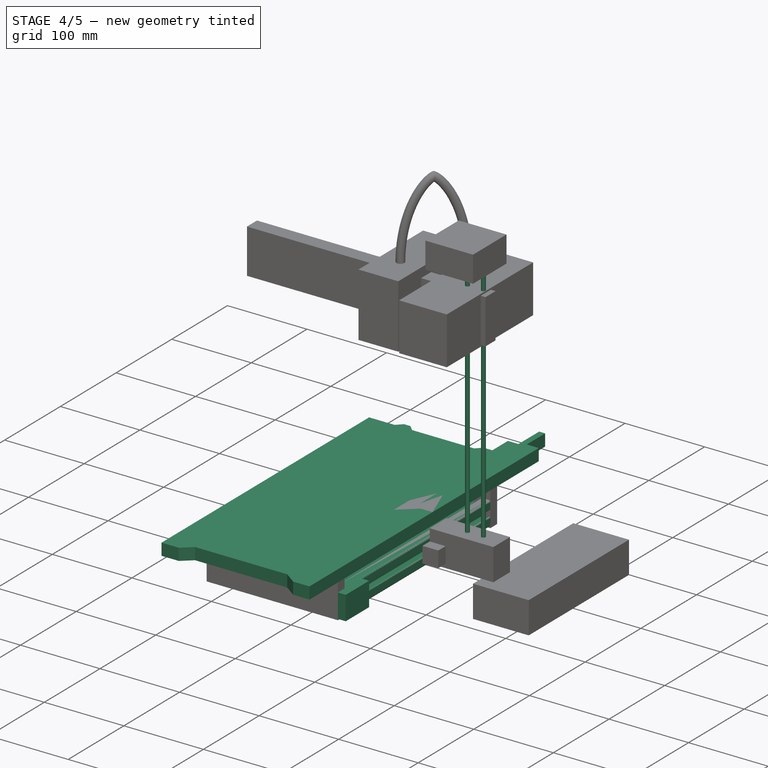
[diagram: stage 4 of 5 — iso view after this stage's code; geometry added in this stage tinted green]
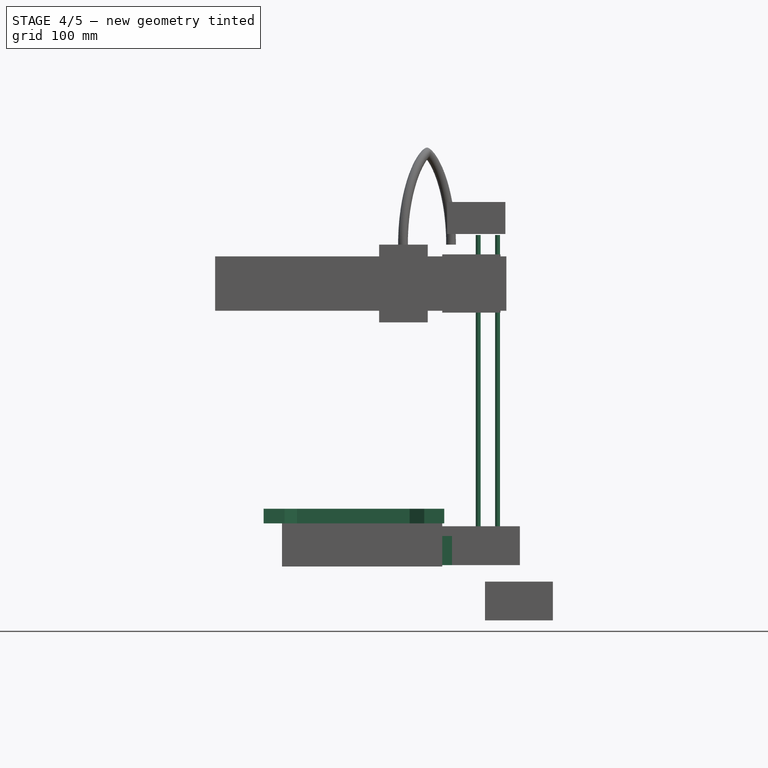
[diagram: stage 4 of 5 — front view after this stage's code; geometry added in this stage tinted green]
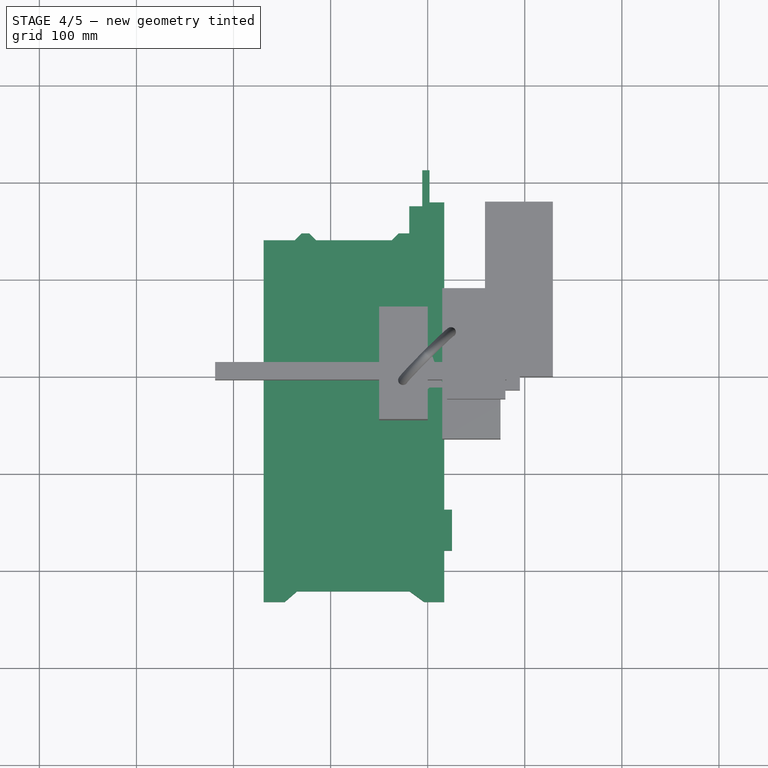
[diagram: stage 4 of 5 — top view after this stage's code; geometry added in this stage tinted green]
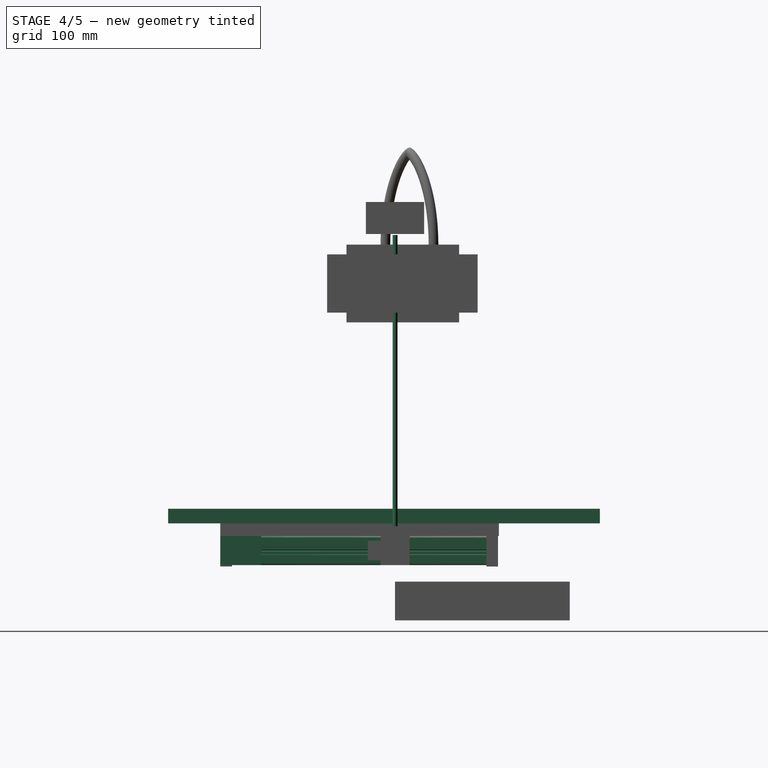
[diagram: stage 4 of 5 — right view after this stage's code; geometry added in this stage tinted green]
FEATURE [PartDesign::Body] Body  label="LeftBaseProfile"
  Group = -> [Sketch001,Pad001,Sketch002,Pocket,PolarPattern,Sketch003,Pocket001,Sketch004,Pocket002,PolarPattern001,Sketch]
  Origin = -> Origin
  Placement = pos=(-120,-180,-15) rot=(0,0.707107,0.707107;3.14159rad)
  Tip = -> PolarPattern001
FEATURE [Part::FeaturePython] Clone  label="RightBaseProfile"  # Draft clone (typed FeaturePython)
  AttacherType = Attacher::AttachEngine3D
  Fuse = false
  Objects = -> [Body]
  Placement = pos=(0,-180,-15) rot=(0,0.707107,0.707107;3.14159rad)
  Scale = (1,1,1)
FEATURE [Part::Box] Box  label="DisplayMount"
  AttacherType = Attacher::AttachEngine3D
  Height = 30
  Length = 10
  Placement = pos=(15,-180,-30) rot=(0,0,1;0rad)
  Width = 42
FEATURE [Part::Cylinder] Cylinder001  label="OuterZRail"
  Angle = 360
  AttacherType = Attacher::AttachEngine3D
  Height = 310
  Placement = pos=(72,0,0) rot=(0,0,1;0rad)
  Radius = 2.5
FEATURE [Part::Cylinder] Cylinder002  label="ZSpindle"
  Angle = 360
  AttacherType = Attacher::AttachEngine3D
  Height = 310
  Placement = pos=(52,0,0) rot=(0,0,1;0rad)
  Radius = 2.5
FEATURE [Part::MultiFuse] Fusion001  label="BaseExtrusions"
  Shapes = -> [Clone,Body]
FEATURE [Part::MultiFuse] Fusion002  label="PrusaMini-Base"
  Shapes = -> [Fusion001,Box,Box006,Body025,Body026,Box027,Box034]
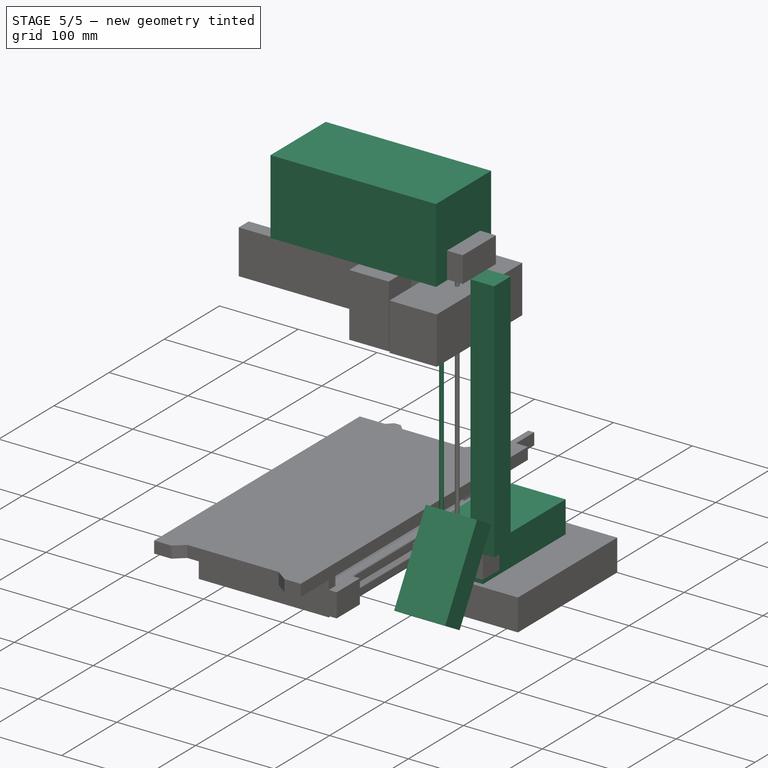
[diagram: stage 5 of 5 — iso view after this stage's code; geometry added in this stage tinted green]
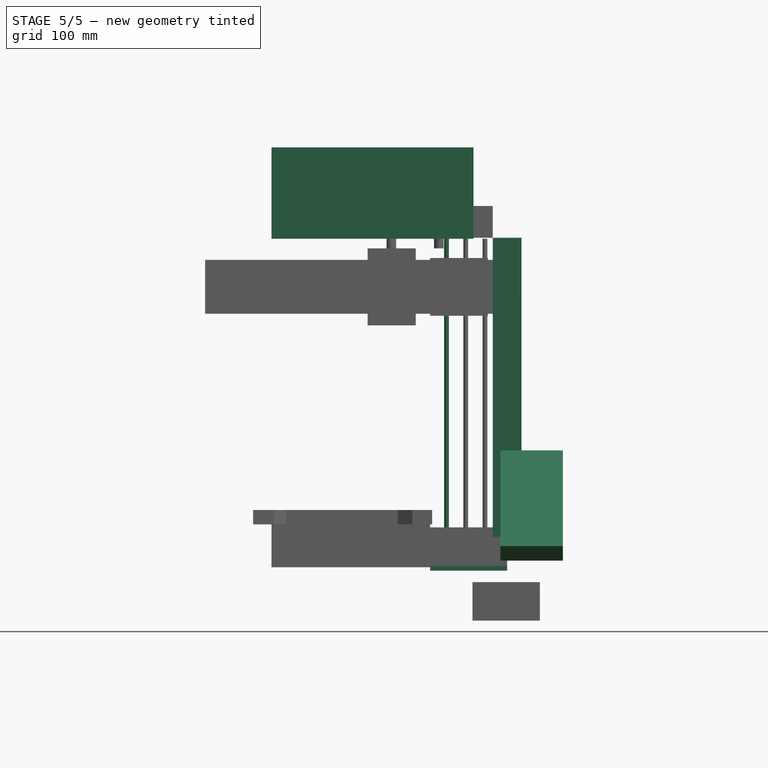
[diagram: stage 5 of 5 — front view after this stage's code; geometry added in this stage tinted green]
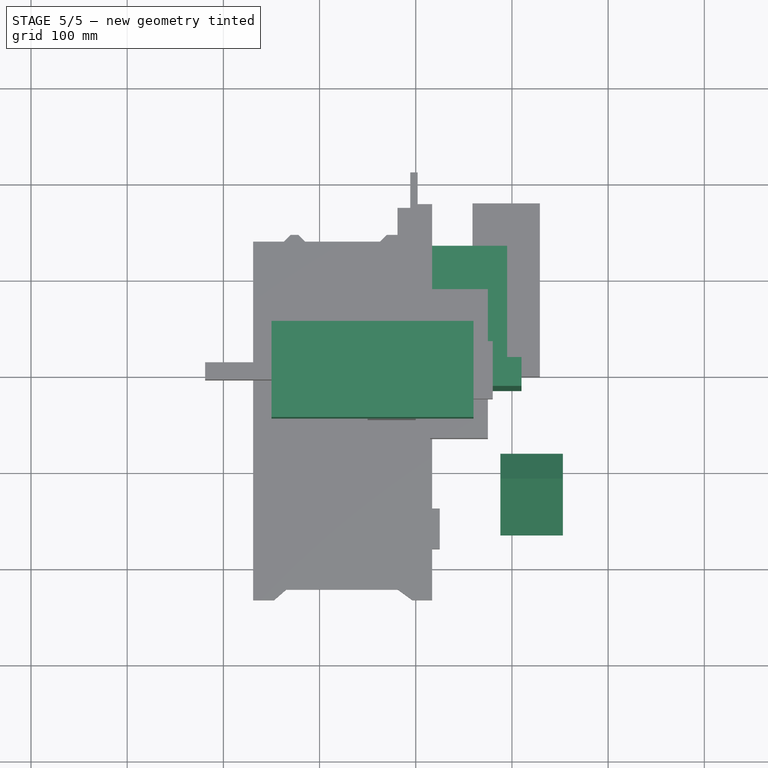
[diagram: stage 5 of 5 — top view after this stage's code; geometry added in this stage tinted green]
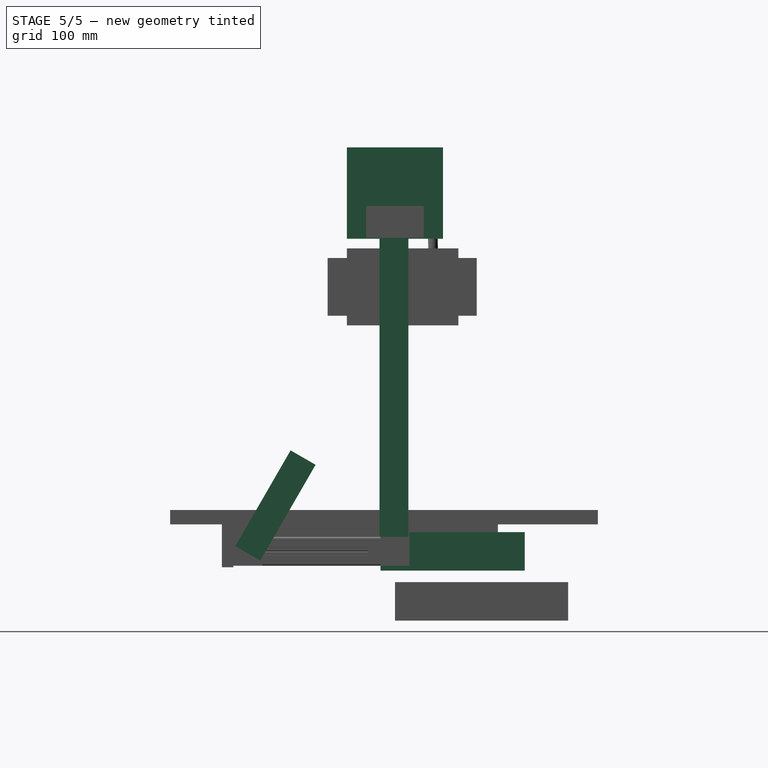
[diagram: stage 5 of 5 — right view after this stage's code; geometry added in this stage tinted green]
FEATURE [Part::Box] Box001  label="Zbeam"
  AttacherType = Attacher::AttachEngine3D
  Height = 311
  Length = 30
  Placement = pos=(80,-16,0) rot=(0,0,1;0rad)
  Width = 30
FEATURE [Part::Box] Box002  label="ElectronicsBox"
  AttacherType = Attacher::AttachEngine3D
  Height = 40
  Length = 80
  Placement = pos=(15,-15,-35) rot=(0,0,1;0rad)
  Width = 150
FEATURE [Part::Cylinder] Cylinder  label="InnerZRail"
  Angle = 360
  AttacherType = Attacher::AttachEngine3D
  Height = 310
  Placement = pos=(32,0,0) rot=(0,0,1;0rad)
  Radius = 2.5
FEATURE [Part::Box] Box007  label="PrusaMini-Display"
  AttacherType = Attacher::AttachEngine3D
  Height = 30
  Length = 65
  Placement = pos=(88,-140.001,-24.5873) rot=(1,0,0;1.0472rad)
  Width = 115
FEATURE [Part::Box] Box011  label="CableArea"
  AttacherType = Attacher::AttachEngine3D
  Height = 95
  Length = 210
  Placement = pos=(60,50,310) rot=(0,0,1;3.14159rad)
  Width = 100
FEATURE [Part::MultiFuse] Fusion  label="PrusaMini-ZBeam"
  Shapes = -> [Box001,Box002,Cylinder,Cylinder001,Cylinder002,Box009,Box025,Box033]
FEATURE [Part::Compound] Compound004  label="PMCompound"
  Links = -> [Fusion002,Fusion,Fusion003]
FEATURE [App::Part] Part  label="PrusaMiniOutline"
  Group = -> [Body,Clone,Box,Fusion001,Box006,Fusion002,Cylinder002,Box004,Cylinder,Box002,Box003,Cylinder001,Box001,Fusion,Box009,Box010,Fusion003,Circle,Sweep,Ellipse001,Box011,Body025,Body026,Box025,Compound004,Box028,Box007]
  Origin = -> Origin001
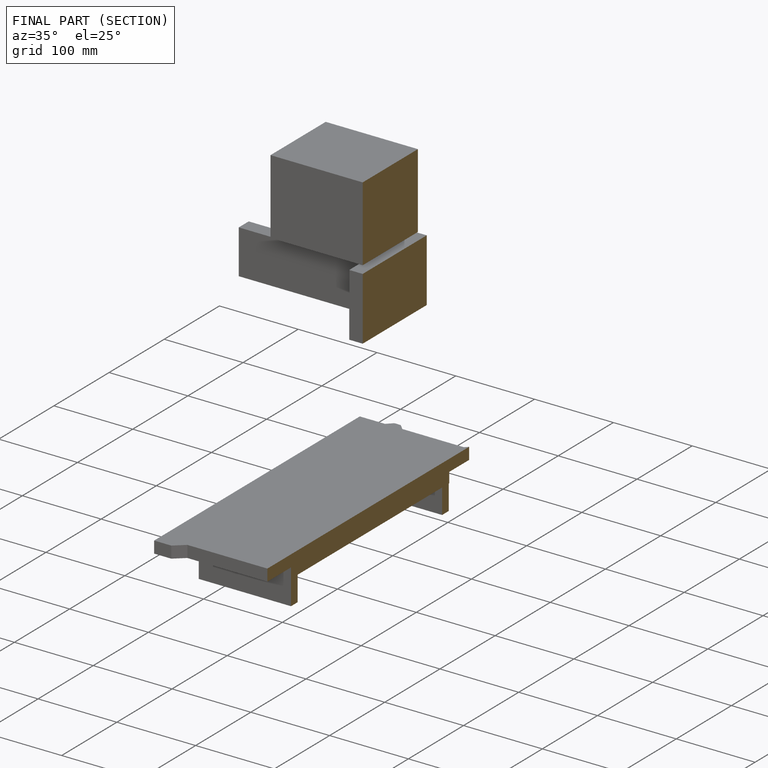
[diagram: finished part — half-section view (interior)]
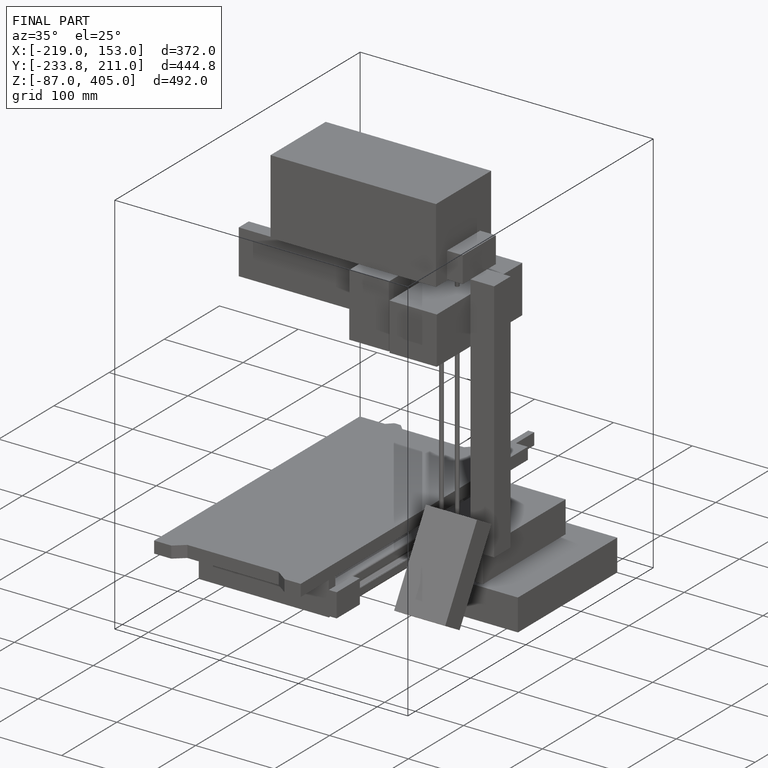
[diagram: finished part — iso view with bounding-box wireframe]
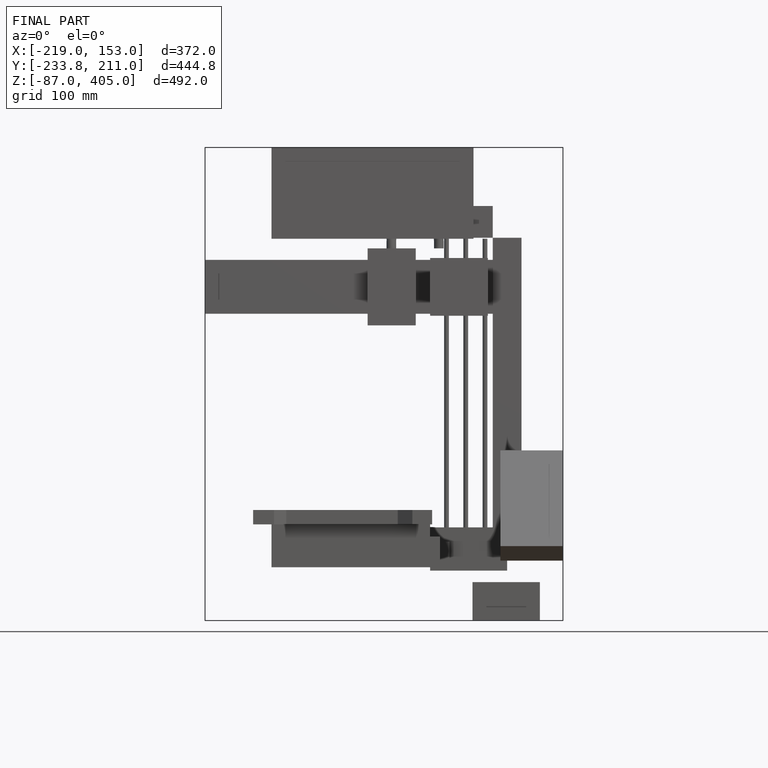
[diagram: finished part — front view with bounding-box wireframe]
